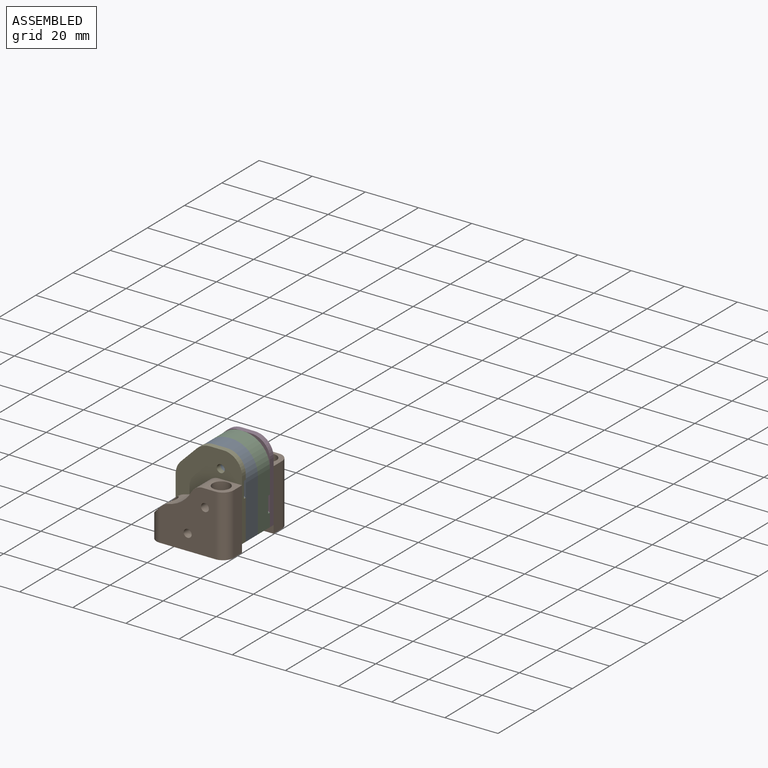
[diagram: assembled view]
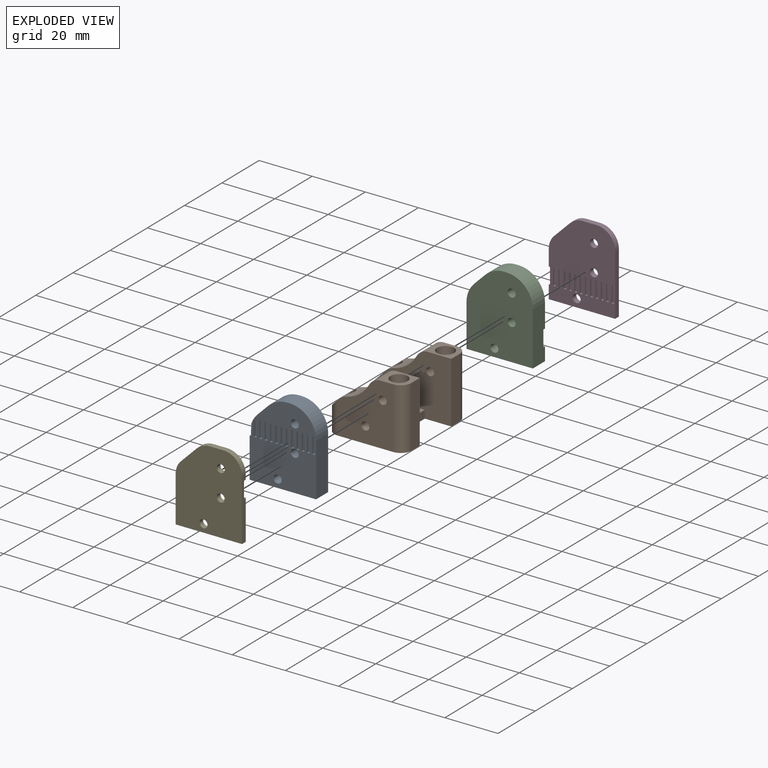
[diagram: exploded view]
GUIDED TOUR — MATED ASSEMBLY (Onshape document 1d66cfd3fa7c25c7c9a6d018, AutoMate assembly 1d66cfd3fa7c25c7c9a6d018_c800547f4c6540db0cd63b53_e288b50c77b09db61c0ae0d0_default)

This assembly has 5 components, labeled P0..P4 below (a component is one placed occurrence of a part; the same part can appear more than once), held together by 4 mates. A mate is a constraint between two components; its type names the relative motion it leaves free:
  FASTENED — locks the two components together rigidly (no relative motion).
Axis/direction vectors are unit vectors and 'through' points are millimeter coordinates, both in the assembly's world frame.

MATES
  1. FASTENED "Fastened 2": P0 <-> P2, direction (0.000, 1.000, 0.000) through (-13.62, -50.38, 4.90) mm
  2. FASTENED "Fastened 1": P4 <-> P0, direction (0.000, 1.000, 0.000) through (-13.62, -56.88, 4.90) mm
  3. FASTENED "Fastened 4": P3 <-> P1, direction (0.000, 1.000, 0.000) through (-13.62, -41.88, 4.90) mm
  4. FASTENED "Fastened 3": P2 <-> P3, direction (0.000, 1.000, 0.000) through (-13.62, -43.88, 4.90) mm

ASSEMBLY ORDER
  1. P4 — the base component [order verified]
  2. P0 [order verified]
  3. P1 [order verified]
  4. P2 [order verified]
  5. P3 [order verified]
Order-tag legend:
  [order verified] — this step's position reverses a verified removal order: the component was checked to insert without passing through the ones already placed.

Of the 5 components, 1 carries the full construction recipe — the FeatureScript program that regenerates the part's solid from scratch; the rest are supplied as boundary geometry only.
Each toured component is shown spotlighted twice — in the assembled view, then in the exploded view, where a leader line traces a displaced component back to its assembled socket (saturated green if recipe-attached, orange if geometry-only; every other component desaturated gray) — followed by its recipe or geometry summary and the mates that hold it.
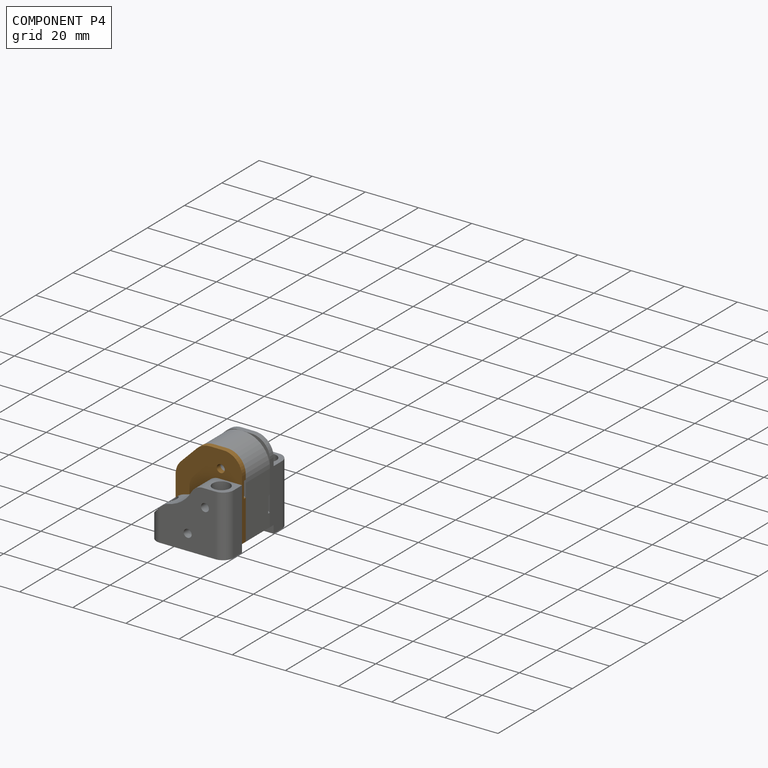
[diagram: component P4 — assembled]
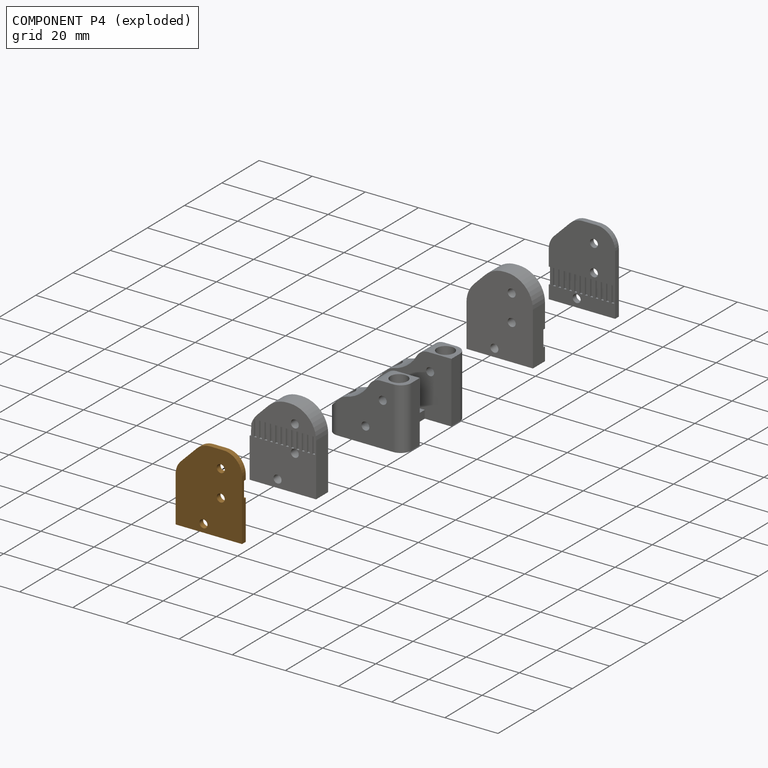
[diagram: component P4 — exploded]
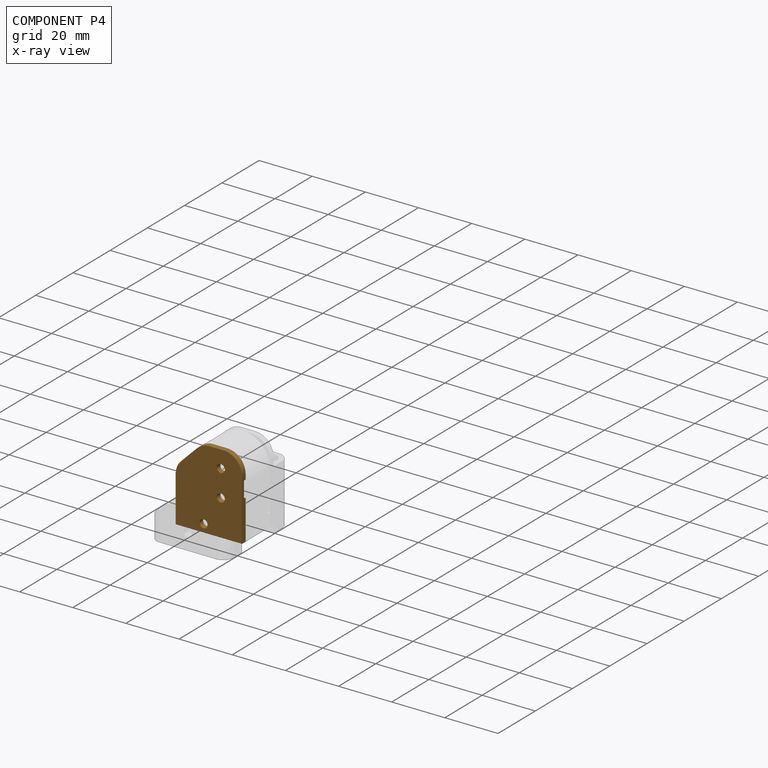
[diagram: component P4 — x-ray view]
COMPONENT P4 — geometry summary (no construction recipe available for this part):
  bounding box: 30.0 x 25.0 x 2.0 mm
  B-rep topology: 1 solid, 17 faces, 90 edges
  volume: 1197 mm^3 (80% of its bounding box)
Held by: FASTENED mate "Fastened 1" to P0.
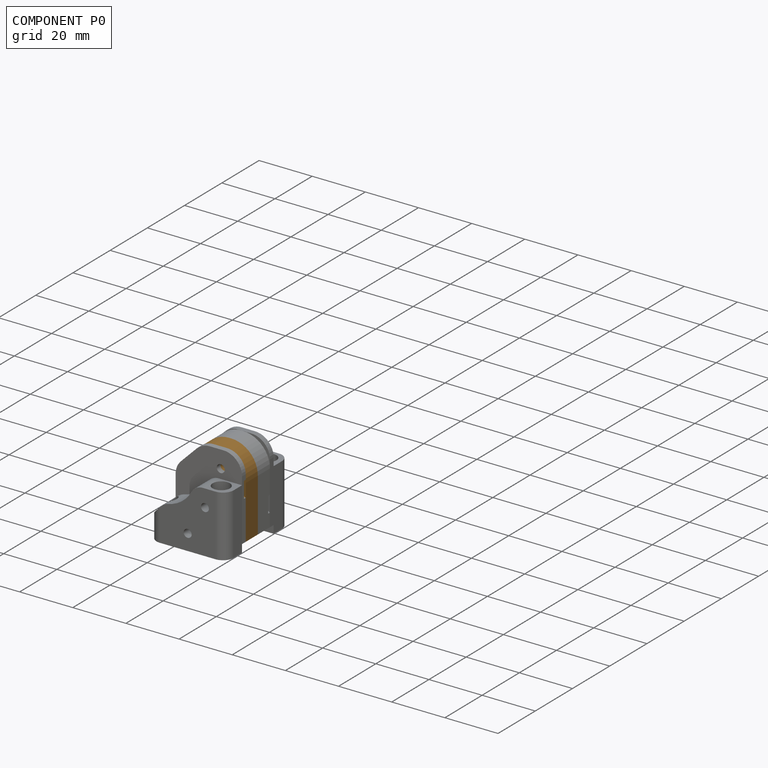
[diagram: component P0 — assembled]
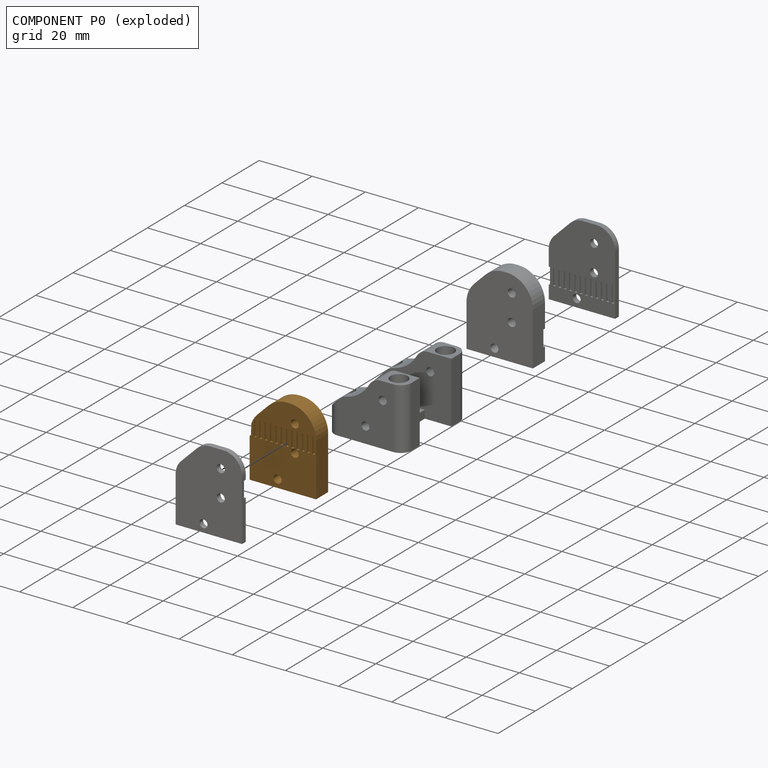
[diagram: component P0 — exploded]
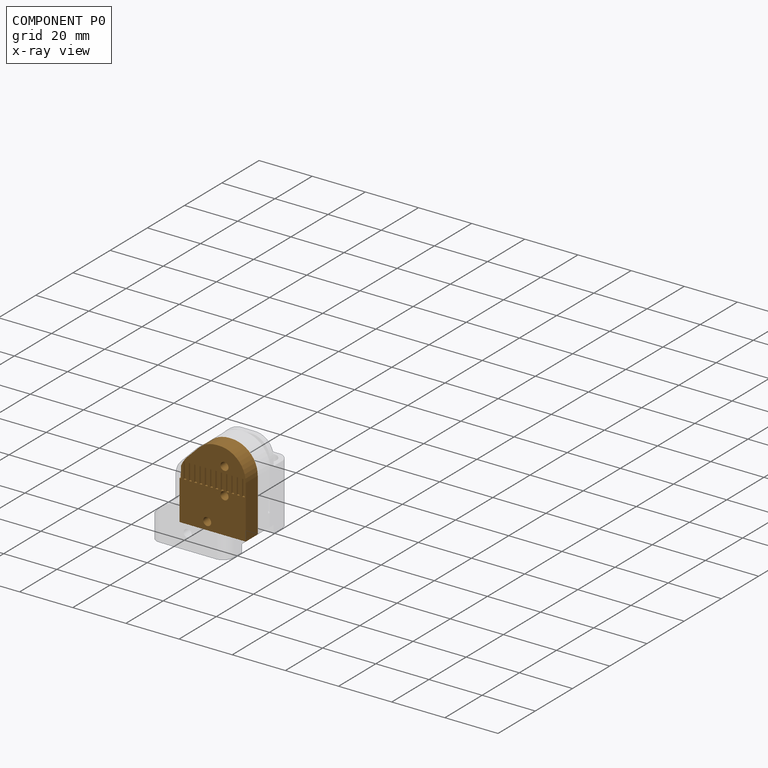
[diagram: component P0 — x-ray view]
COMPONENT P0 — geometry summary (no construction recipe available for this part):
  bounding box: 30.0 x 25.0 x 6.5 mm
  B-rep topology: 1 solid, 76 faces, 372 edges
  volume: 4192 mm^3 (86% of its bounding box)
Held by: FASTENED mate "Fastened 2" to P2; FASTENED mate "Fastened 1" to P4.
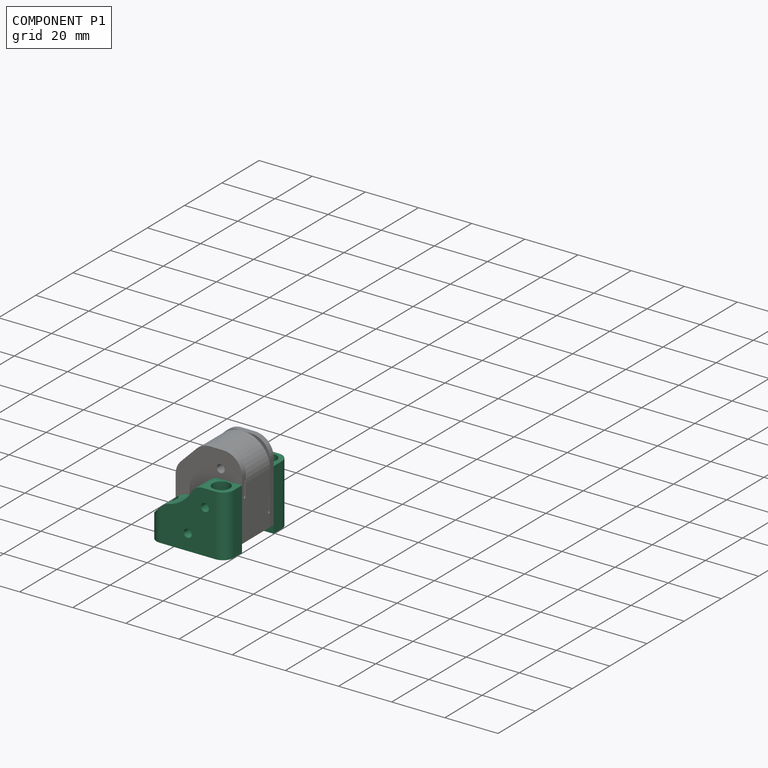
[diagram: component P1 — assembled]
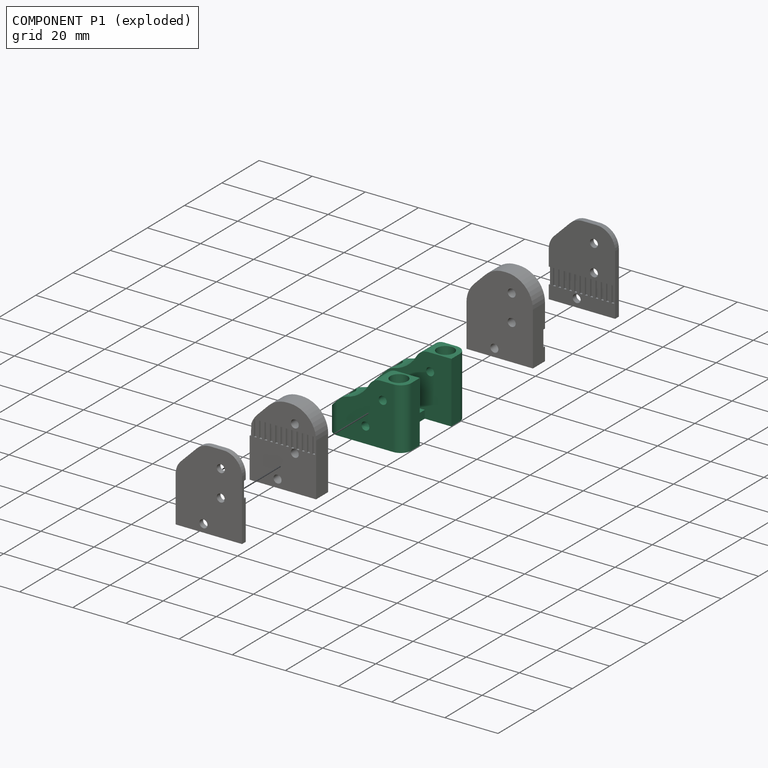
[diagram: component P1 — exploded]
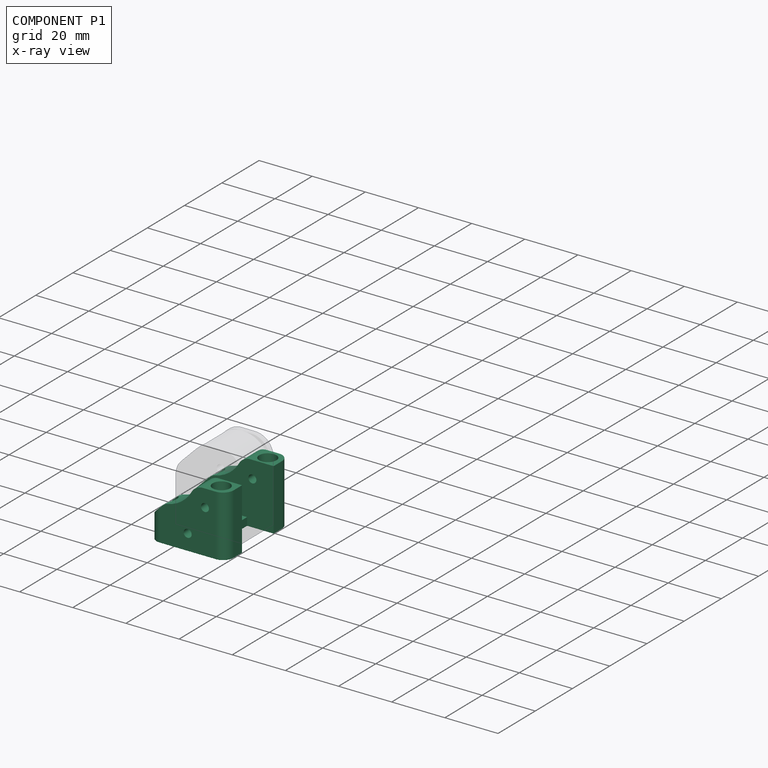
[diagram: component P1 — x-ray view]
COMPONENT P1 — recipe-attached (CADFS 00756894, mesh-verified: the recipe's output STEP matches this component's geometry to below the mesh-comparison resolution (tessellation chordal tolerance ~0.0754 mm)).
Held by: FASTENED mate "Fastened 4" to P3.
Construction recipe (FeatureScript — the CAD program that rebuilds this solid; sketch coordinates are in the units given by the * unit suffixes, e.g. mm):

FeatureScript 1511;
import(path : "onshape/std/geometry.fs", version : "1511.0");
import(path : "onshape/std/common.fs", version : "1511.0");
const mm = millimeter;
const VERTEX = EntityType.VERTEX;
const EDGE = EntityType.EDGE;
const FACE = EntityType.FACE;
const BODY = EntityType.BODY;
function v(x, y){return vector(x, y);}
function OD(order){return orderDisambiguation(order);}
function OSD(set){return originalSetDisambiguation(set);}
function TD(topology){return topologyDisambiguation(topology);}
function TDD(query){return trueDependencyDisambiguation(query);}
function sQuery(a, b, c) {return sketchEntityQuery(a, b, c);}

annotation { "Feature Type Name" : "Feature", "Feature Type Description" : "" }
export const myFeature = defineFeature(function(context is Context, id is Id, definition is map)
    precondition{}
    {
        {
            var Q0;
            Q0=qCreatedBy(makeId("Front.planeOp"),FACE);
            var sketch = newSketch(context, id + "F0", { "sketchPlane" : qUnion([Q0])});
            skLineSegment(sketch, "E0.bottom", {"start": v(14.5, -1.5) * mm, "end": v(-14.5, -1.5) * mm});
            skLineSegment(sketch, "E0.top", {"start": v(14.5, 1.5) * mm, "end": v(-14.5, 1.5) * mm});
            skLineSegment(sketch, "E0.left", {"start": v(14.5, -1.5) * mm, "end": v(14.5, 1.5) * mm});
            skLineSegment(sketch, "E0.right", {"start": v(-14.5, -1.5) * mm, "end": v(-14.5, 1.5) * mm});
            skPoint(sketch, "E0.middle", {"position": v(0, 0) * mm});
            skSolve(sketch);
        }
        {
            var Q0;
            Q0=makeQuery(id+"F0.imprint","IMPRINT",FACE,{"disambiguationData":[TD([[makeQuery(id+"F0.imprint","IMPRINT",EDGE,{"derivedFrom":sQuery(id+"F0.wireOp",EDGE,"E0.bottom")}),-1.0]])]});
            extrude(context, id + "F1", {"entities" : qUnion([Q0]), "endBound" : BoundingType.SYMMETRIC, "depth" : 34 * mm, "offsetDistance" : 25 * mm});
        }
        {
            var Q0;
            Q0=makeQuery(id+"F1.opExtrude","CAP_FACE",FACE,{"disambiguationData":[OSD([sQuery(id+"F0.wireOp",EDGE,"E0.bottom"),sQuery(id+"F0.wireOp",EDGE,"E0.top"),sQuery(id+"F0.wireOp",EDGE,"E0.left"),sQuery(id+"F0.wireOp",EDGE,"E0.right")])],"isStart":false});
            var sketch = newSketch(context, id + "F2", { "sketchPlane" : qUnion([Q0])});
            skLineSegment(sketch, "E1", {"start": v(-14.5, 12.5) * mm, "end": v(-7.5, 12.5) * mm});
            skLineSegment(sketch, "E2", {"start": v(14.5, 1.5) * mm, "end": v(14.5, 21.5) * mm});
            skLineSegment(sketch, "E3", {"start": v(14.5, 21.5) * mm, "end": v(2.5, 21.5) * mm});
            skArc(sketch, "E4", {"start": v(2.5, 21.5) * mm, "mid": v(-1.25, 15.6) * mm, "end": v(-7.5, 12.5) * mm});
            skLineSegment(sketch, "E5", {"start": v(-14.5, 12.5) * mm, "end": v(-14.5, 1.5) * mm});
            skSolve(sketch);
        }
        {
            var Q0;
            Q0=makeQuery(id+"F2.imprint","IMPRINT",FACE,{"disambiguationData":[TD([[makeQuery(id+"F2.imprint","IMPRINT",EDGE,{"derivedFrom":sQuery(id+"F2.wireOp",EDGE,"E1")}),-1.0]])]});
            var Q1;
            Q1 = qSketchRegion(id + "F5", true);
            extrude(context, id + "F3", {"entities" : qUnion([Q0, Q1]), "depth" : 0 * mm, "offsetDistance" : 25 * mm, "hasSecondDirection" : true, "secondDirectionOppositeDirection" : true, "secondDirectionDepth" : 8.5 * mm});
        }
        {
            var Q0;
            Q0=makeQuery(id+"F3.opExtrude","SWEPT_BODY",BODY,{"disambiguationData":[OSD([sQuery(id+"F0.wireOp",EDGE,"E0.top"),sQuery(id+"F2.wireOp",EDGE,"E1"),sQuery(id+"F2.wireOp",EDGE,"E2"),sQuery(id+"F2.wireOp",EDGE,"E3"),sQuery(id+"F2.wireOp",EDGE,"6A3O42f3-pV0s-6iDU-mPt9-r4TsTGyD7GF8"),sQuery(id+"F2.wireOp",EDGE,"E4")])]});
            var Q1;
            Q1=qCreatedBy(makeId("Front.planeOp"),FACE);
            mirror(context, id + "F4", {"operationType" : NewBodyOperationType.ADD, "entities" : qUnion([Q0]), "mirrorPlane" : qUnion([Q1])});
        }
        {
            var Q0;
            Q0=makeQuery(id+"F1.opExtrude","SWEPT_FACE",FACE,{"disambiguationData":[OSD([sQuery(id+"F0.wireOp",EDGE,"E0.top")])]});
            var sketch = newSketch(context, id + "F5", { "sketchPlane" : qUnion([Q0])});
            skLineSegment(sketch, "E6.bottom", {"start": v(4.5, -8.5) * mm, "end": v(24.5, -8.5) * mm});
            skLineSegment(sketch, "E6.top", {"start": v(4.5, 8.5) * mm, "end": v(24.5, 8.5) * mm});
            skLineSegment(sketch, "E6.left", {"start": v(4.5, -8.5) * mm, "end": v(4.5, 8.5) * mm});
            skLineSegment(sketch, "E6.right", {"start": v(24.5, -8.5) * mm, "end": v(24.5, 8.5) * mm});
            skPoint(sketch, "E6.middle", {"position": v(14.5, 0) * mm});
            skSolve(sketch);
        }
        {
            var Q0;
            Q0 = qSketchRegion(id + "F5", true);
            var Q1;
            Q1=makeQuery(id+"F1.opExtrude","SWEPT_FACE",FACE,{"disambiguationData":[OSD([sQuery(id+"F0.wireOp",EDGE,"E0.bottom")])]});
            extrude(context, id + "F6", {"entities" : qUnion([Q0]), "operationType" : NewBodyOperationType.REMOVE, "endBound" : BoundingType.UP_TO_SURFACE, "oppositeDirection" : true, "depth" : 8.3 * mm, "endBoundEntityFace" : qUnion([Q1]), "offsetDistance" : 25 * mm});
        }
        {
            var Q0;
            Q0=makeQuery(id+"F3.opExtrude","SWEPT_FACE",FACE,{"disambiguationData":[OSD([sQuery(id+"F2.wireOp",EDGE,"E3")])]});
            var sketch = newSketch(context, id + "F7", { "sketchPlane" : qUnion([Q0])});
            skCircle(sketch, "E7", {"center": v(9.5, -12.5) * mm, "radius": 1.5 * mm});
            skCircle(sketch, "E8", {"center": v(9.5, 12.5) * mm, "radius": 1.5 * mm});
            skCircle(sketch, "E9", {"center": v(-10.5, 12.5) * mm, "radius": 1.5 * mm});
            skCircle(sketch, "E10", {"center": v(-10.5, -12.5) * mm, "radius": 1.5 * mm});
            skCircle(sketch, "E11", {"center": v(-10.5, 12.5) * mm, "radius": 3.25 * mm});
            skCircle(sketch, "E12", {"center": v(9.5, 12.5) * mm, "radius": 3.25 * mm});
            skCircle(sketch, "E13", {"center": v(9.5, -12.5) * mm, "radius": 3.25 * mm});
            skCircle(sketch, "E14", {"center": v(-10.5, -12.5) * mm, "radius": 3.25 * mm});
            skSolve(sketch);
        }
        {
            var Q0;
            Q0=makeQuery(id+"F7.imprint","IMPRINT",FACE,{"disambiguationData":[TD([[makeQuery(id+"F7.imprint","IMPRINT",EDGE,{"derivedFrom":sQuery(id+"F7.wireOp",EDGE,"E9")}),1.0]])]});
            var Q1;
            Q1=makeQuery(id+"F7.imprint","IMPRINT",FACE,{"disambiguationData":[TD([[makeQuery(id+"F7.imprint","IMPRINT",EDGE,{"derivedFrom":sQuery(id+"F7.wireOp",EDGE,"E10")}),1.0]])]});
            var Q2;
            Q2=makeQuery(id+"F7.imprint","IMPRINT",FACE,{"disambiguationData":[TD([[makeQuery(id+"F7.imprint","IMPRINT",EDGE,{"derivedFrom":sQuery(id+"F7.wireOp",EDGE,"E7")}),1.0]])]});
            var Q3;
            Q3=makeQuery(id+"F7.imprint","IMPRINT",FACE,{"disambiguationData":[TD([[makeQuery(id+"F7.imprint","IMPRINT",EDGE,{"derivedFrom":sQuery(id+"F7.wireOp",EDGE,"E8")}),1.0]])]});
            extrude(context, id + "F8", {"entities" : qUnion([Q0, Q1, Q2, Q3]), "operationType" : NewBodyOperationType.REMOVE, "endBound" : BoundingType.THROUGH_ALL, "oppositeDirection" : true, "depth" : 25 * mm, "offsetDistance" : 25 * mm});
        }
        {
            var Q0;
            Q0 = qSketchRegion(id + "F7", true);
            extrude(context, id + "F9", {"entities" : qUnion([Q0]), "operationType" : NewBodyOperationType.REMOVE, "oppositeDirection" : true, "depth" : 14.5 * mm, "offsetDistance" : 25 * mm});
        }
        {
            var Q0;
            {var subQ0=sQuery(id+"F0.wireOp",EDGE,"E0.top");Q0=makeQuery(id+"F4.boolean.opBoolean","MERGE",FACE,{"derivedFrom":[makeQuery(id+"F1.opExtrude","CAP_FACE",FACE,{"disambiguationData":[OSD([sQuery(id+"F0.wireOp",EDGE,"E0.bottom"),subQ0,sQuery(id+"F0.wireOp",EDGE,"E0.left"),sQuery(id+"F0.wireOp",EDGE,"E0.right")])],"isStart":false}),makeQuery(id+"F3.opExtrude","CAP_FACE",FACE,{"disambiguationData":[OSD([subQ0,sQuery(id+"F2.wireOp",EDGE,"E1"),sQuery(id+"F2.wireOp",EDGE,"E2"),sQuery(id+"F2.wireOp",EDGE,"E3"),sQuery(id+"F2.wireOp",EDGE,"6A3O42f3-pV0s-6iDU-mPt9-r4TsTGyD7GF8"),sQuery(id+"F2.wireOp",EDGE,"E4")])],"isStart":false})]});}
            var sketch = newSketch(context, id + "F10", { "sketchPlane" : qUnion([Q0])});
            skCircle(sketch, "E15", {"center": v(0, 4.5) * mm, "radius": 1.5 * mm});
            skCircle(sketch, "E16", {"center": v(6.5, 15) * mm, "radius": 1.5 * mm});
            skSolve(sketch);
        }
        {
            var Q0;
            Q0 = qSketchRegion(id + "F10", true);
            extrude(context, id + "F11", {"entities" : qUnion([Q0]), "operationType" : NewBodyOperationType.REMOVE, "endBound" : BoundingType.THROUGH_ALL, "oppositeDirection" : true, "depth" : 25 * mm, "offsetDistance" : 25 * mm});
        }
        {
            var Q0;
            Q0=makeQuery(id+"F3.opExtrude","SWEPT_EDGE",EDGE,{"disambiguationData":[OSD([sQuery(id+"F2.wireOp",EDGE,"E1"),sQuery(id+"F2.wireOp",EDGE,"E5")])]});
            var Q1;
            Q1=makeQuery(id+"F4.opPattern","COPY",EDGE,{"derivedFrom":makeQuery(id+"F3.opExtrude","SWEPT_EDGE",EDGE,{"disambiguationData":[OSD([sQuery(id+"F2.wireOp",EDGE,"E1"),sQuery(id+"F2.wireOp",EDGE,"E5")])]}),"instanceName":"1"});
            chamfer(context, id + "F12", {"entities" : qUnion([Q0, Q1]), "width" : 6 * mm, "tangentPropagation" : true});
        }
        {
            var Q0;
            Q0=makeQuery(id+"F1.opExtrude","CAP_EDGE",EDGE,{"disambiguationData":[OSD([sQuery(id+"F0.wireOp",EDGE,"E0.right")])],"isStart":false});
            var Q1;
            Q1=makeQuery(id+"F4.boolean.opBoolean","MERGE",EDGE,{"derivedFrom":[makeQuery(id+"F1.opExtrude","CAP_EDGE",EDGE,{"disambiguationData":[OSD([sQuery(id+"F0.wireOp",EDGE,"E0.left")])],"isStart":false}),makeQuery(id+"F3.opExtrude","CAP_EDGE",EDGE,{"disambiguationData":[OSD([sQuery(id+"F2.wireOp",EDGE,"E2")])],"isStart":false})]});
            var Q2;
            Q2=makeQuery(id+"F4.boolean.opBoolean","MERGE",EDGE,{"derivedFrom":[makeQuery(id+"F1.opExtrude","CAP_EDGE",EDGE,{"disambiguationData":[OSD([sQuery(id+"F0.wireOp",EDGE,"E0.left")])],"isStart":true}),makeQuery(id+"F4.opPattern","COPY",EDGE,{"derivedFrom":makeQuery(id+"F3.opExtrude","CAP_EDGE",EDGE,{"disambiguationData":[OSD([sQuery(id+"F2.wireOp",EDGE,"E2")])],"isStart":false}),"instanceName":"1"})]});
            var Q3;
            Q3=makeQuery(id+"F1.opExtrude","CAP_EDGE",EDGE,{"disambiguationData":[OSD([sQuery(id+"F0.wireOp",EDGE,"E0.right")])],"isStart":true});
            fillet(context, id + "F13", {"entities" : qUnion([Q0, Q1, Q2, Q3]), "radius" : 4 * mm, "tangentPropagation" : true, "allowEdgeOverflow" : false});
        }
        {
            var Q0;
            {var subQ0=sQuery(id+"F2.wireOp",EDGE,"E1");Q0=makeQuery(id+"F12.opChamfer","BLEND_EDGE",EDGE,{"disambiguationData":[OD(1.0)],"blendedFrom":[makeQuery(id+"F4.opPattern","COPY",EDGE,{"derivedFrom":makeQuery(id+"F3.opExtrude","SWEPT_EDGE",EDGE,{"disambiguationData":[OSD([subQ0,sQuery(id+"F2.wireOp",EDGE,"E5")])]}),"instanceName":"1"}),makeQuery(id+"F4.opPattern","COPY",FACE,{"derivedFrom":makeQuery(id+"F3.opExtrude","SWEPT_FACE",FACE,{"disambiguationData":[OSD([subQ0])]}),"instanceName":"1"})],"blendedInto":[makeQuery(id+"F4.opPattern","COPY",FACE,{"derivedFrom":makeQuery(id+"F3.opExtrude","SWEPT_FACE",FACE,{"disambiguationData":[OSD([subQ0])]}),"instanceName":"1"})]});}
            var Q1;
            Q1=makeQuery(id+"F4.opPattern","COPY",EDGE,{"derivedFrom":makeQuery(id+"F3.opExtrude","SWEPT_EDGE",EDGE,{"disambiguationData":[OSD([sQuery(id+"F2.wireOp",EDGE,"E3"),sQuery(id+"F2.wireOp",EDGE,"E4")])]}),"instanceName":"1"});
            var Q2;
            {var subQ0=sQuery(id+"F2.wireOp",EDGE,"E1");Q2=makeQuery(id+"F12.opChamfer","BLEND_EDGE",EDGE,{"disambiguationData":[OD(0.0)],"blendedFrom":[makeQuery(id+"F4.opPattern","COPY",EDGE,{"derivedFrom":makeQuery(id+"F3.opExtrude","SWEPT_EDGE",EDGE,{"disambiguationData":[OSD([subQ0,sQuery(id+"F2.wireOp",EDGE,"E5")])]}),"instanceName":"1"}),makeQuery(id+"F4.opPattern","COPY",FACE,{"derivedFrom":makeQuery(id+"F3.opExtrude","SWEPT_FACE",FACE,{"disambiguationData":[OSD([subQ0])]}),"instanceName":"1"})],"blendedInto":[makeQuery(id+"F4.opPattern","COPY",FACE,{"derivedFrom":makeQuery(id+"F3.opExtrude","SWEPT_FACE",FACE,{"disambiguationData":[OSD([subQ0])]}),"instanceName":"1"})]});}
            var Q3;
            Q3=makeQuery(id+"F3.opExtrude","SWEPT_EDGE",EDGE,{"disambiguationData":[OSD([sQuery(id+"F2.wireOp",EDGE,"E3"),sQuery(id+"F2.wireOp",EDGE,"E4")])]});
            var Q4;
            {var subQ0=sQuery(id+"F2.wireOp",EDGE,"E1");Q4=makeQuery(id+"F12.opChamfer","BLEND_EDGE",EDGE,{"disambiguationData":[OD(1.0)],"blendedFrom":[makeQuery(id+"F3.opExtrude","SWEPT_EDGE",EDGE,{"disambiguationData":[OSD([subQ0,sQuery(id+"F2.wireOp",EDGE,"E5")])]}),makeQuery(id+"F3.opExtrude","SWEPT_FACE",FACE,{"disambiguationData":[OSD([subQ0])]})],"blendedInto":[makeQuery(id+"F3.opExtrude","SWEPT_FACE",FACE,{"disambiguationData":[OSD([subQ0])]})]});}
            var Q5;
            {var subQ0=sQuery(id+"F2.wireOp",EDGE,"E1");Q5=makeQuery(id+"F12.opChamfer","BLEND_EDGE",EDGE,{"disambiguationData":[OD(0.0)],"blendedFrom":[makeQuery(id+"F3.opExtrude","SWEPT_EDGE",EDGE,{"disambiguationData":[OSD([subQ0,sQuery(id+"F2.wireOp",EDGE,"E5")])]}),makeQuery(id+"F3.opExtrude","SWEPT_FACE",FACE,{"disambiguationData":[OSD([subQ0])]})],"blendedInto":[makeQuery(id+"F3.opExtrude","SWEPT_FACE",FACE,{"disambiguationData":[OSD([subQ0])]})]});}
            fillet(context, id + "F14", {"entities" : qUnion([Q0, Q1, Q2, Q3, Q4, Q5]), "radius" : 5 * mm, "tangentPropagation" : true, "allowEdgeOverflow" : false});
        }
    });
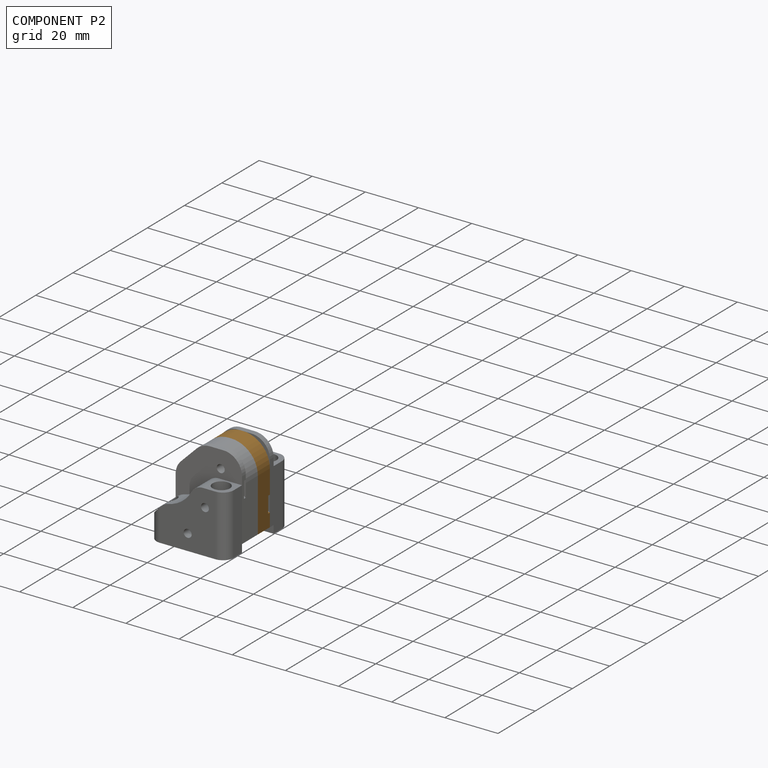
[diagram: component P2 — assembled]
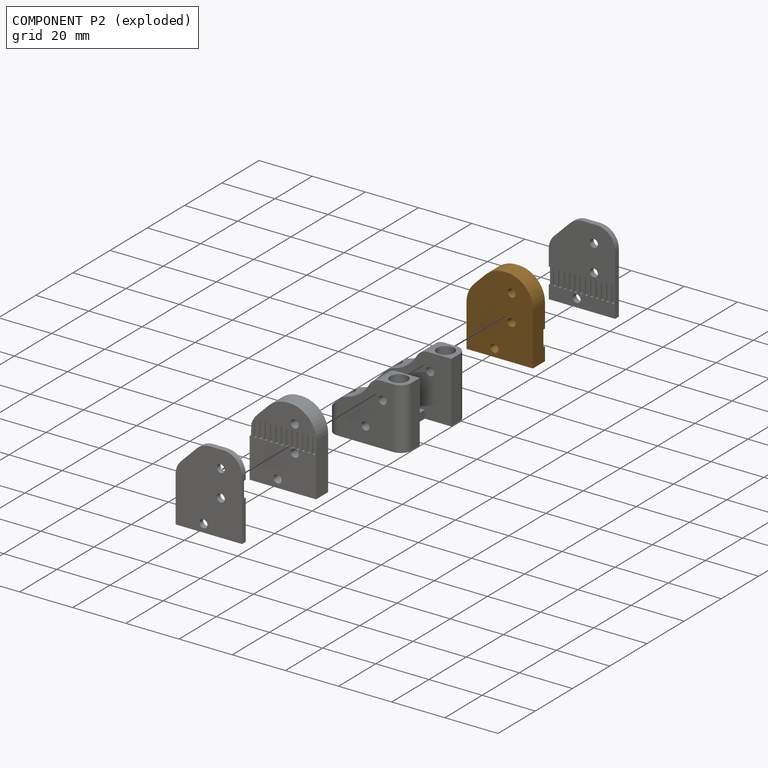
[diagram: component P2 — exploded]
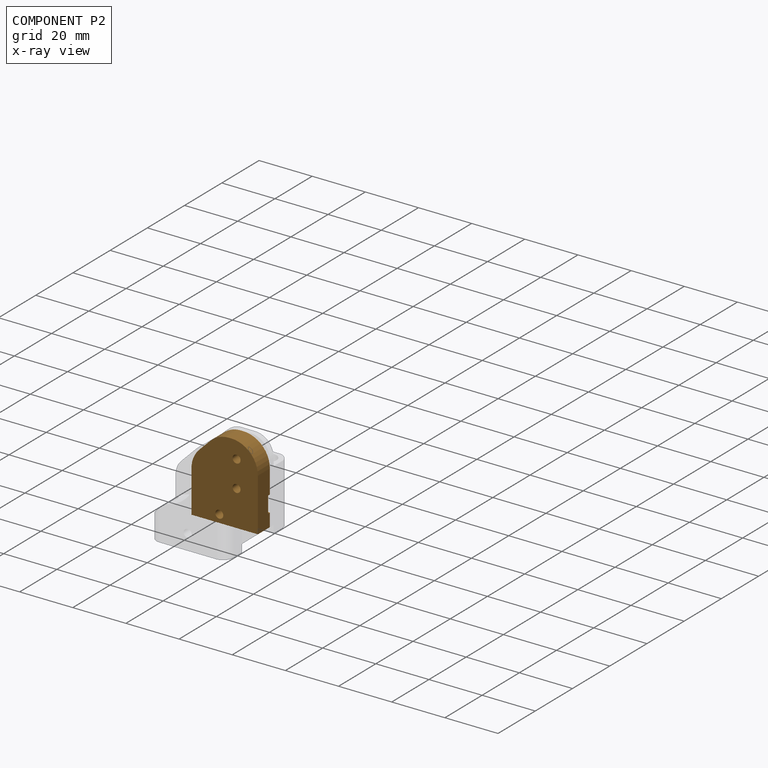
[diagram: component P2 — x-ray view]
COMPONENT P2 — geometry summary (no construction recipe available for this part):
  bounding box: 30.0 x 25.0 x 6.5 mm
  B-rep topology: 1 solid, 17 faces, 90 edges
  volume: 4107 mm^3 (84% of its bounding box)
Held by: FASTENED mate "Fastened 2" to P0; FASTENED mate "Fastened 3" to P3.
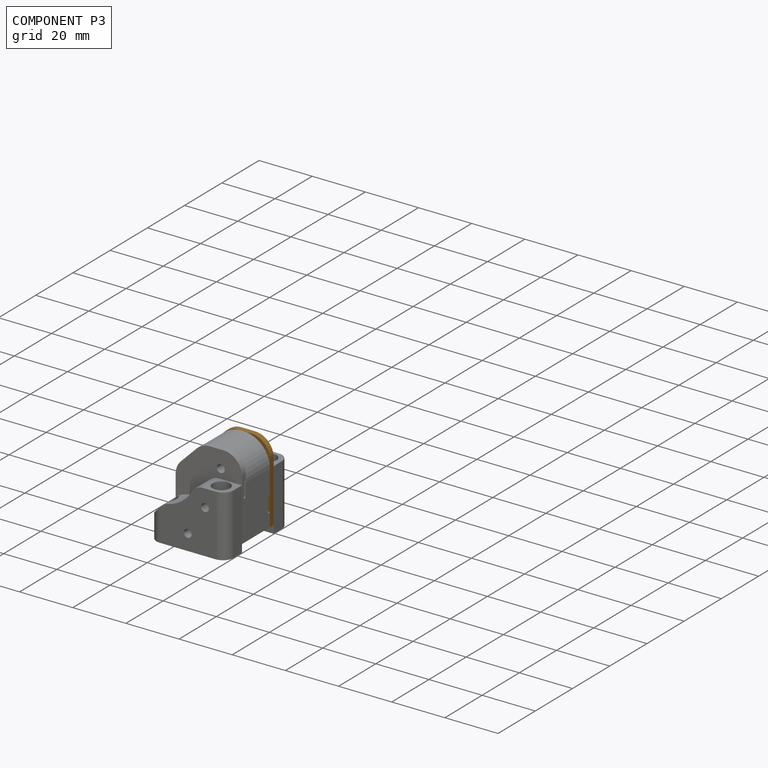
[diagram: component P3 — assembled]
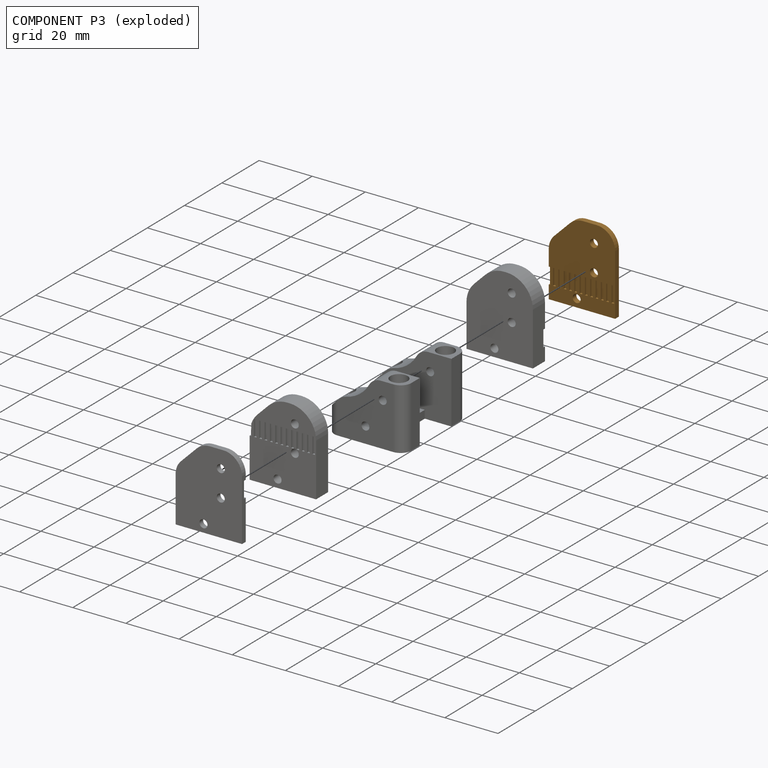
[diagram: component P3 — exploded]
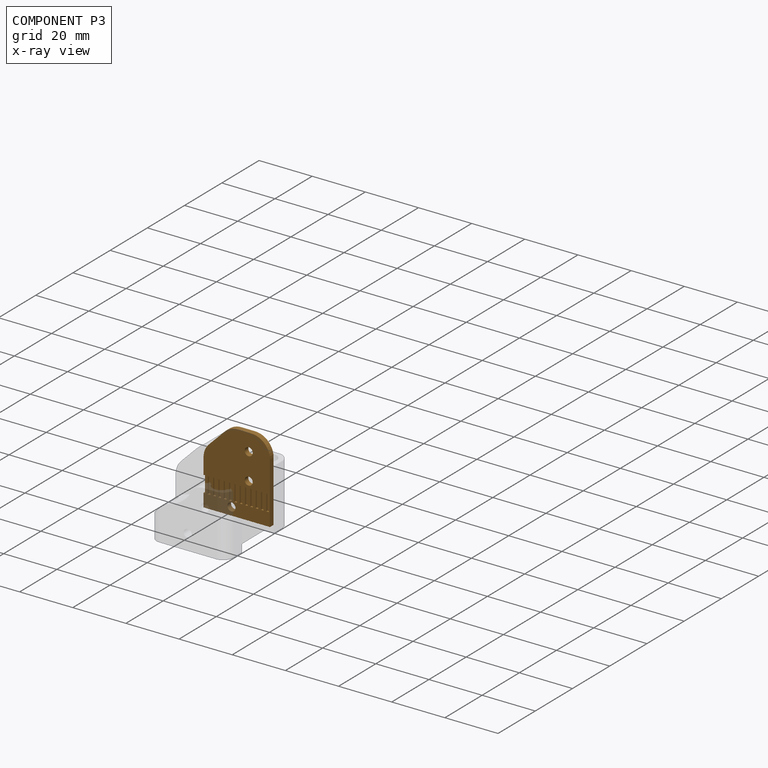
[diagram: component P3 — x-ray view]
COMPONENT P3 — geometry summary (no construction recipe available for this part):
  bounding box: 30.0 x 25.0 x 2.0 mm
  B-rep topology: 1 solid, 77 faces, 378 edges
  volume: 1279 mm^3 (85% of its bounding box)
Held by: FASTENED mate "Fastened 4" to P1; FASTENED mate "Fastened 3" to P2.
PROVENANCE & LICENSES
Assembly (occurrences, transforms, mates, per-part STEP geometry): AutoMate dataset, Zenodo record 7776208, CC0.
Construction recipes: CADFS (HuggingFace VladPyatov/CADFS, CC-BY-4.0, layered over the ABC dataset), FeatureScript reconstruction programs keyed by ABC model id.
Join: ABC meta listings map ABC model id -> Onshape documentId; within a shared document, parts are matched by geometric signature (bounding-box dims + volume at 0.1% relative tolerance, exact B-rep face/solid counts).
Verification: 1 of this assembly's 5 components carries a recipe attachment, and every attachment is mesh-verified: the CADFS STEP and the AutoMate member STEP were compared as meshes in their shared local frame (symmetric sampled-point-to-mesh distance); worst across the 1 attachment: below the mesh-comparison resolution (tessellation chordal tolerance ~0.0754 mm) on a 50 mm part.
Renders: orthographic iso camera (az 35 / el 25); the floor grid conveys scale (grid pitch printed in each image; no ruler). In the exploded view each component is displaced by its stored offset vector: the offsets alone carry the explosion direction (mate normal/axis signs are not orientation cues and do not encode it), and separation distances are assigned per mate-chain, not proportionally to assembly-order depth.
